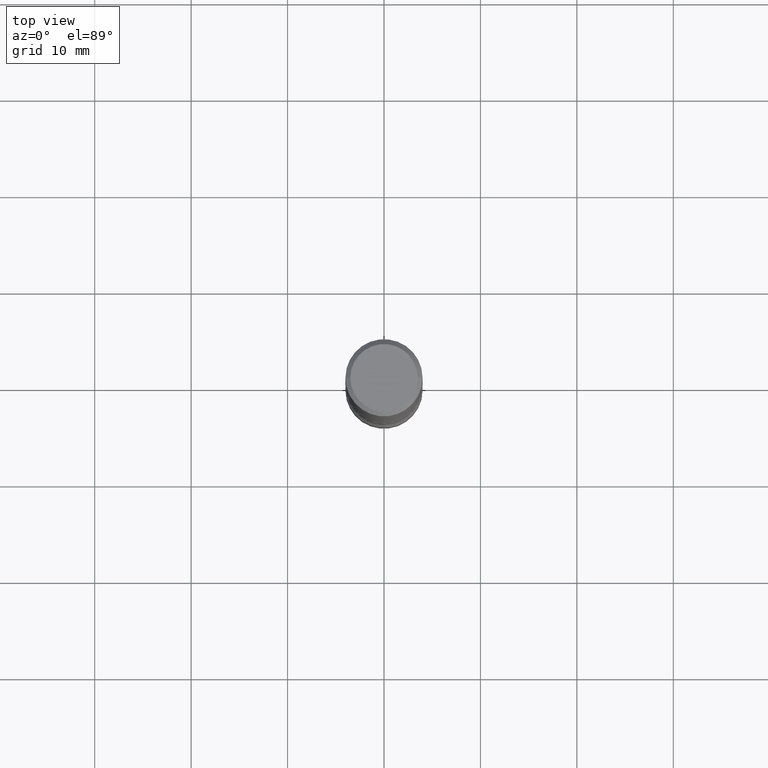
[diagram: clean part render]
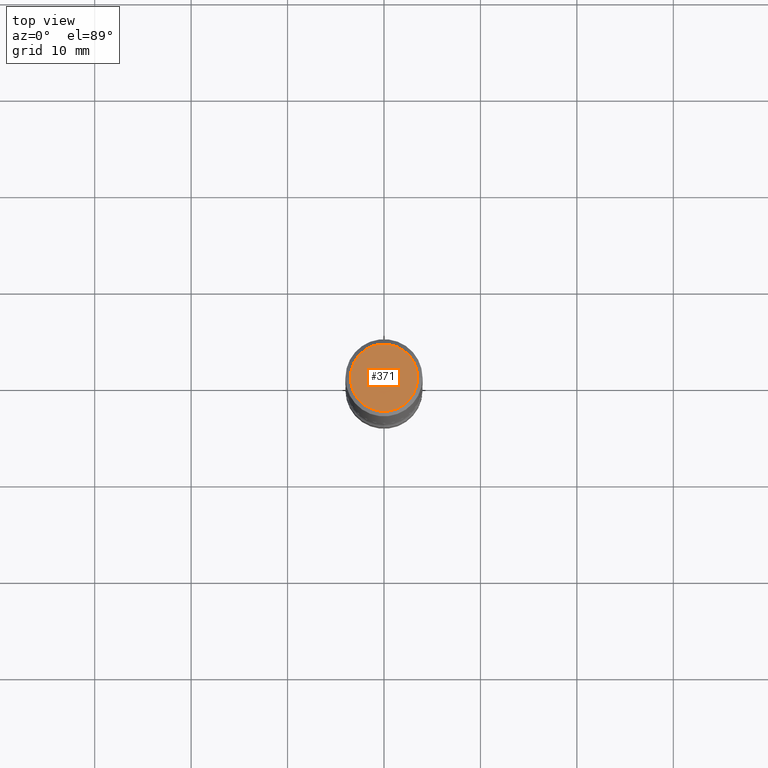
[diagram: same view with one face highlighted and labeled with its STEP entity id]
A machine part, top view. The second image highlights one B-rep face of the part: STEP entity #371.
In plain terms, the highlighted planar face has unit normal (0, -0, -1).
Its self-contained STEP definition (entity closure, byte-faithful):
#10 = EDGE_LOOP ( 'NONE', ( #171, #272 ) ) ;
#34 = AXIS2_PLACEMENT_3D ( 'NONE', #320, #495, #465 ) ;
#67 = CARTESIAN_POINT ( 'NONE',  ( -1.043851414335219820E-46, 1.490343170380447200E-32, 4.268512490100411279E-18 ) ) ;
#77 = EDGE_CURVE ( 'NONE', #396, #88, #282, .T. ) ;
#86 = CARTESIAN_POINT ( 'NONE',  ( -1.043851414335219820E-46, 1.490343170380447200E-32, 4.268512490100411279E-18 ) ) ;
#88 = VERTEX_POINT ( 'NONE', #225 ) ;
#106 = AXIS2_PLACEMENT_3D ( 'NONE', #86, #350, #166 ) ;
#139 = DIRECTION ( 'NONE',  ( 1.000000000000000000, -6.982962677686267499E-15, 4.876173381029101724E-29 ) ) ;
#166 = DIRECTION ( 'NONE',  ( 1.000000000000000000, -6.982962677686267499E-15, 4.876173381029101724E-29 ) ) ;
#171 = ORIENTED_EDGE ( 'NONE', *, *, #503, .T. ) ;
#225 = CARTESIAN_POINT ( 'NONE',  ( -0.1374999999999999556, 9.950721815702927302E-16, 4.268512490093574228E-18 ) ) ;
#272 = ORIENTED_EDGE ( 'NONE', *, *, #77, .T. ) ;
#282 = CIRCLE ( 'NONE', #534, 0.1374999999999999556 ) ;
#320 = CARTESIAN_POINT ( 'NONE',  ( 9.601573681818612783E-16, 0.1374999999999999556, -4.779444278458822007E-16 ) ) ;
#350 = DIRECTION ( 'NONE',  ( -2.445468806185136597E-29, 3.491481338843145583E-15, 1.000000000000000000 ) ) ;
#366 = FACE_OUTER_BOUND ( 'NONE', #10, .T. ) ;
#369 = CARTESIAN_POINT ( 'NONE',  ( 0.1374999999999999556, -1.046838268059732294E-15, 4.268512490107428597E-18 ) ) ;
#371 = ADVANCED_FACE ( 'NONE', ( #366 ), #537, .F. ) ;
#396 = VERTEX_POINT ( 'NONE', #369 ) ;
#448 = DIRECTION ( 'NONE',  ( -2.445468806185136597E-29, 3.491481338843145583E-15, 1.000000000000000000 ) ) ;
#465 = DIRECTION ( 'NONE',  ( -1.000000000000000000, 6.982962677686265922E-15, -4.876176775795935793E-29 ) ) ;
#495 = DIRECTION ( 'NONE',  ( 2.438088387897960049E-29, -3.491481338843145188E-15, -1.000000000000000000 ) ) ;
#503 = EDGE_CURVE ( 'NONE', #88, #396, #558, .T. ) ;
#534 = AXIS2_PLACEMENT_3D ( 'NONE', #67, #448, #139 ) ;
#537 = PLANE ( 'NONE',  #34 ) ;
#558 = CIRCLE ( 'NONE', #106, 0.1374999999999999556 ) ;